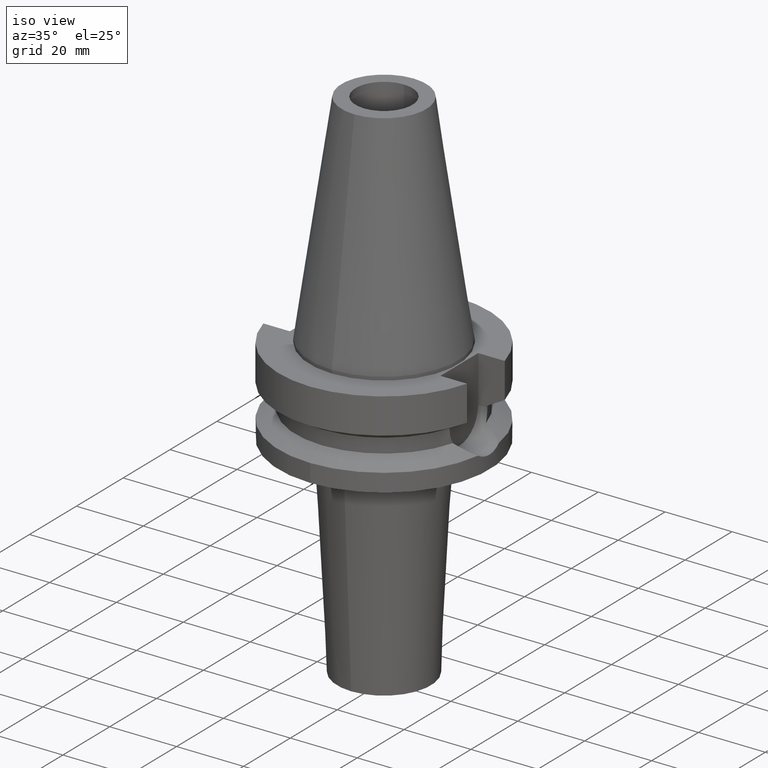
[diagram: clean part render]
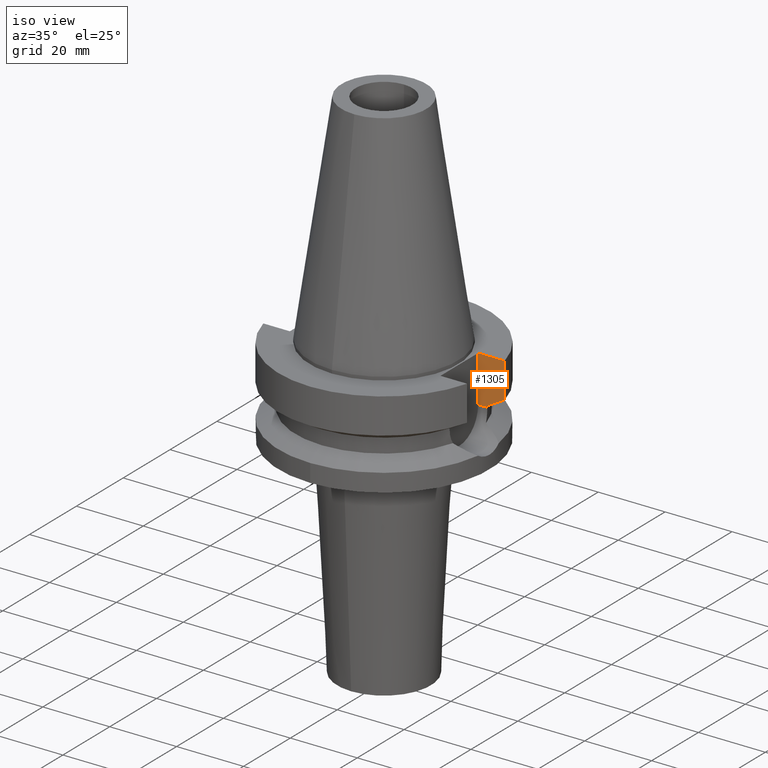
[diagram: same view with one face highlighted and labeled with its STEP entity id]
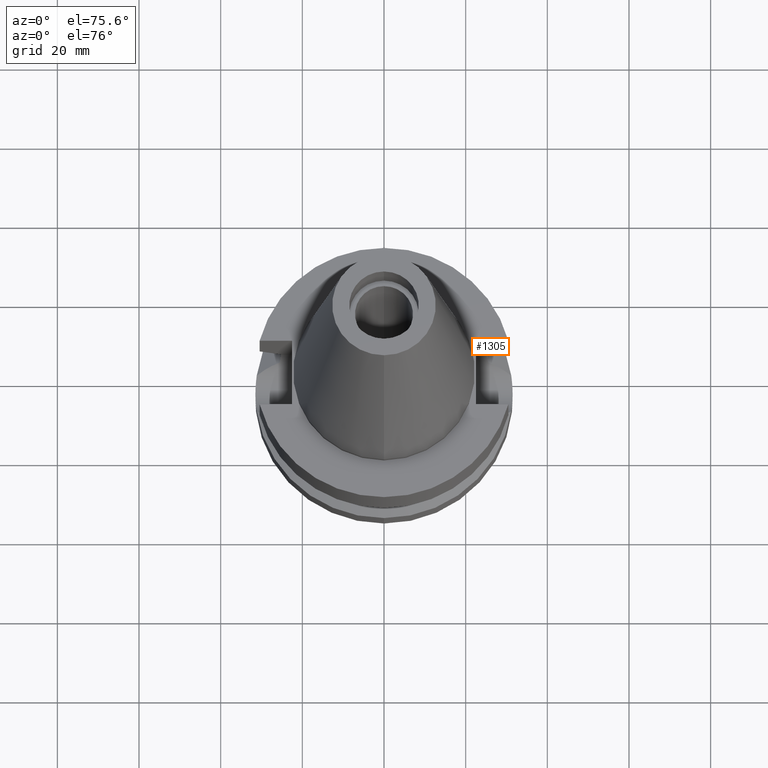
[diagram: same view with one face highlighted and labeled with its STEP entity id]
A machine part, iso view. The second image highlights one B-rep face of the part: STEP entity #1305.
A second angle (auxiliary view) of the same face is appended — the face is thin or edge-on in the first view.
In plain terms, the highlighted planar face has unit normal (0, 1, 0).
Its self-contained STEP definition (entity closure, byte-faithful):
#307=DIRECTION('',(0.E0,0.E0,-1.E0));
#308=VECTOR('',#307,1.395E1);
#309=CARTESIAN_POINT('',(2.25E1,8.05E0,-1.E0));
#310=LINE('',#309,#308);
#337=DIRECTION('',(1.E0,-3.506251283226E-14,0.E0));
#338=VECTOR('',#337,7.954022722788E0);
#339=CARTESIAN_POINT('',(2.25E1,8.05E0,-1.E0));
#340=LINE('',#339,#338);
#344=CARTESIAN_POINT('',(3.045402291389E1,8.049999277024E0,-1.156551216436E1));
#345=CARTESIAN_POINT('',(2.987645774819E1,8.049999277024E0,-1.188789691187E1));
#346=CARTESIAN_POINT('',(2.872091192782E1,8.049999725939E0,-1.253193838564E1));
#347=CARTESIAN_POINT('',(2.698538656632E1,8.050002043677E0,-1.349404326788E1));
#348=CARTESIAN_POINT('',(2.582730531235E1,8.049995414128E0,-1.413348341696E1));
#349=CARTESIAN_POINT('',(2.524772413174E1,8.049995414128E0,-1.445229204066E1));
#381=DIRECTION('',(2.937789781755E-6,-9.213981180956E-6,9.999999999532E-1));
#382=VECTOR('',#381,4.977079593662E-1);
#383=CARTESIAN_POINT('',(2.524772266958E1,8.05E0,-1.495E1));
#384=LINE('',#383,#382);
#437=DIRECTION('',(-1.808768633101E-8,6.842791639759E-8,1.E0));
#438=VECTOR('',#437,1.056551216436E1);
#439=CARTESIAN_POINT('',(3.045402291389E1,8.049999277024E0,-1.156551216436E1));
#440=LINE('',#439,#438);
#532=DIRECTION('',(1.E0,-1.551559937893E-14,0.E0));
#533=VECTOR('',#532,2.747722669580E0);
#534=CARTESIAN_POINT('',(2.25E1,8.05E0,-1.495E1));
#535=LINE('',#534,#533);
#988=CARTESIAN_POINT('',(2.25E1,8.05E0,-1.495E1));
#989=VERTEX_POINT('',#988);
#990=CARTESIAN_POINT('',(2.524772266958E1,8.05E0,-1.495E1));
#991=VERTEX_POINT('',#990);
#1018=CARTESIAN_POINT('',(2.524772413174E1,8.049995414128E0,-1.445229204066E1));
#1019=VERTEX_POINT('',#1018);
#1033=CARTESIAN_POINT('',(3.045402272279E1,8.05E0,-1.E0));
#1035=VERTEX_POINT('',#1033);
#1036=CARTESIAN_POINT('',(2.25E1,8.05E0,-1.E0));
#1037=VERTEX_POINT('',#1036);
#1057=VERTEX_POINT('',#344);
#1288=CARTESIAN_POINT('',(2.25E1,8.05E0,-1.495E1));
#1289=DIRECTION('',(0.E0,1.E0,0.E0));
#1290=DIRECTION('',(0.E0,0.E0,1.E0));
#1291=AXIS2_PLACEMENT_3D('',#1288,#1289,#1290);
#1292=PLANE('',#1291);
#1294=ORIENTED_EDGE('',*,*,#1293,.F.);
#1296=ORIENTED_EDGE('',*,*,#1295,.F.);
#1297=ORIENTED_EDGE('',*,*,#1278,.F.);
#1298=ORIENTED_EDGE('',*,*,#1147,.T.);
#1300=ORIENTED_EDGE('',*,*,#1299,.F.);
#1302=ORIENTED_EDGE('',*,*,#1301,.T.);
#1303=EDGE_LOOP('',(#1294,#1296,#1297,#1298,#1300,#1302));
#1304=FACE_OUTER_BOUND('',#1303,.F.);
#350=B_SPLINE_CURVE_WITH_KNOTS('',3,(#344,#345,#346,#347,#348,#349),
.UNSPECIFIED.,.F.,.F.,(4,1,1,4),(0.E0,3.333333333333E-1,6.666666666667E-1,1.E0),
.UNSPECIFIED.);
#1147=EDGE_CURVE('',#1037,#1035,#340,.T.);
#1278=EDGE_CURVE('',#1037,#989,#310,.T.);
#1293=EDGE_CURVE('',#991,#1019,#384,.T.);
#1295=EDGE_CURVE('',#989,#991,#535,.T.);
#1299=EDGE_CURVE('',#1057,#1035,#440,.T.);
#1301=EDGE_CURVE('',#1057,#1019,#350,.T.);
#1305=ADVANCED_FACE('',(#1304),#1292,.F.);